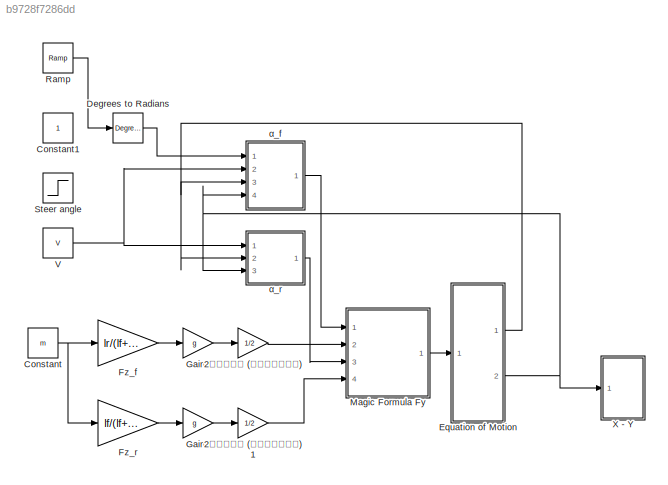
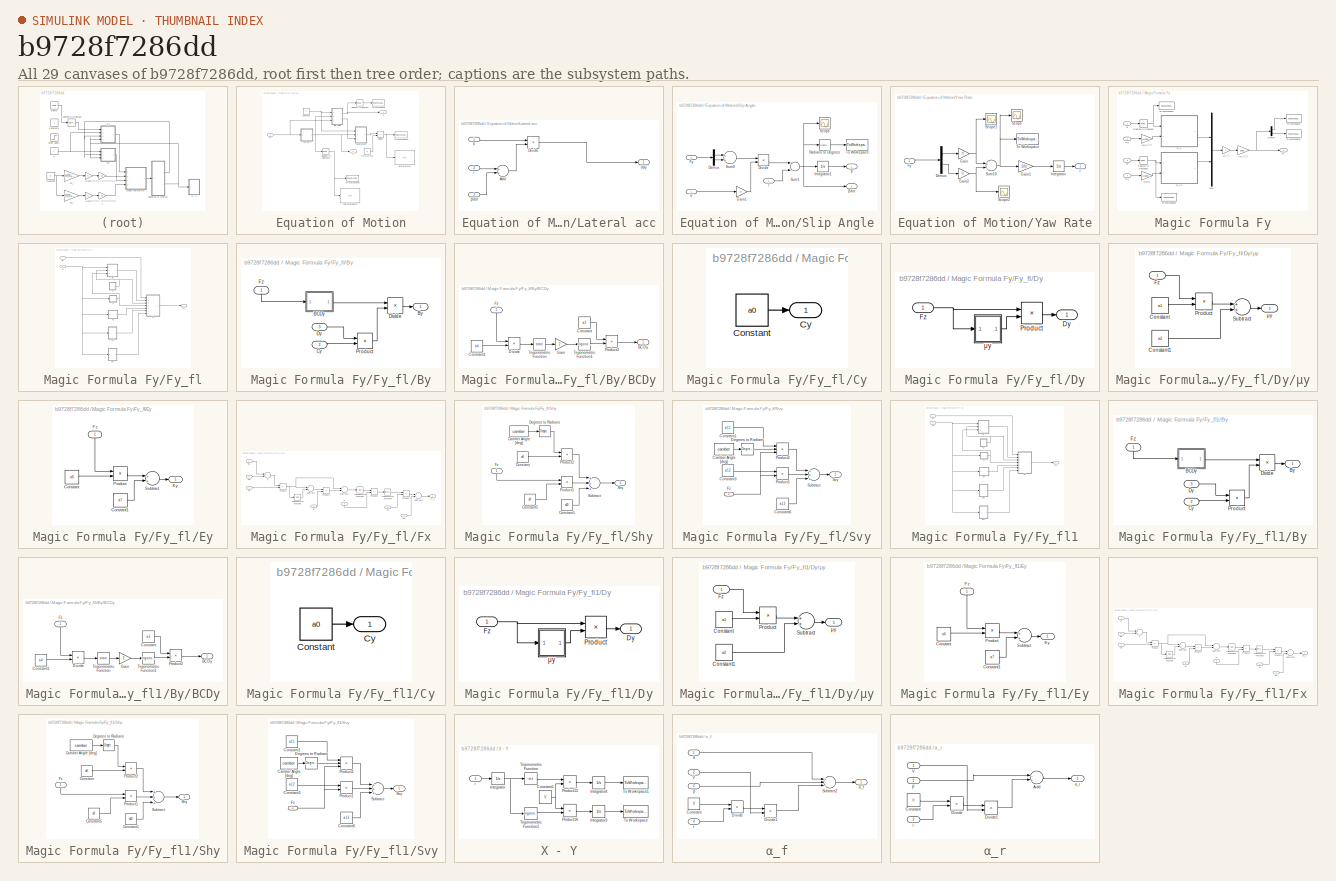
[diagram: thumbnail index - all 29 canvases of the model, root first then tree order]
MODEL slx_b9728f7286dd
KIND model
CONFIG AbsTol = auto
CONFIG EnableMultiTasking = on
CONFIG FixedStep = Step_Time
CONFIG MaxStep = auto
CONFIG MinStep = auto
CONFIG RelTol = 1e-3
CONFIG SampleTimeConstraint = Unconstrained
CONFIG Solver = ode4
CONFIG SolverName = ode4
CONFIG StartTime = 0
CONFIG StopTime = Analysis_Time
BLOCK [Gain] 2輪モデル用 (一輪の接地荷重)
  Gain = 1/2
  OutDataTypeStr = Inherit: Inherit via internal rule
  ParamDataTypeStr = Inherit: Inherit via internal rule
  SaturateOnIntegerOverflow = off
BLOCK [Gain] 2輪モデル用 (一輪の接地荷重)1
  Gain = 1/2
  OutDataTypeStr = Inherit: Inherit via internal rule
  ParamDataTypeStr = Inherit: Inherit via internal rule
  SaturateOnIntegerOverflow = off
BLOCK [Constant] Constant
  Value = m
BLOCK [Constant] Constant1
BLOCK [Reference] Degrees to Radians  REF=simulink_extras/Transformations/Degrees to
Radians
  Ports = [1, 1]
  SourceBlock = simulink_extras/Transformations/Degrees to\nRadians
  SourceProductBaseCode = SL
  SourceProductName = Simulink
  SourceType = DegreesToRadians
BLOCK [SubSystem] Equation of Motion
  Ports = [1, 2]
  RequestExecContextInheritance = off
BLOCK [Constant] Equation of Motion/Constant
  Value = V
BLOCK [Product] Equation of Motion/Divide1
  InputSameDT = off
  Inputs = */
  OutDataTypeStr = Inherit: Inherit via internal rule
  Ports = [2, 1]
  RndMeth = Floor
  SaturateOnIntegerOverflow = off
BLOCK [Inport] Equation of Motion/Fy
  IconDisplay = Port number
BLOCK [SubSystem] Equation of Motion/Lateral acc
  Ports = [3, 1]
  RequestExecContextInheritance = off
BLOCK [Sum] Equation of Motion/Lateral acc/Add
  InputSameDT = off
  OutDataTypeStr = Inherit: Inherit via internal rule
  Ports = [2, 1]
  SaturateOnIntegerOverflow = off
BLOCK [Product] Equation of Motion/Lateral acc/Divide
  InputSameDT = off
  Inputs = **
  OutDataTypeStr = Inherit: Inherit via internal rule
  Ports = [2, 1]
  RndMeth = Floor
  SaturateOnIntegerOverflow = off
BLOCK [Inport] Equation of Motion/Lateral acc/V
  IconDisplay = Port number
BLOCK [Outport] Equation of Motion/Lateral acc/ddy
  IconDisplay = Port number
BLOCK [Inport] Equation of Motion/Lateral acc/r
  IconDisplay = Port number
  Port = 2
BLOCK [Inport] Equation of Motion/Lateral acc/βdot
  IconDisplay = Port number
  Port = 3
BLOCK [Reference] Equation of Motion/Radians to Degrees  REF=simulink_extras/Transformations/Radians
to Degrees
  Ports = [1, 1]
  SourceBlock = simulink_extras/Transformations/Radians\nto Degrees
  SourceProductBaseCode = SL
  SourceProductName = Simulink
  SourceType = RadiansToDegrees
BLOCK [Reference] Equation of Motion/Radians to Degrees1  REF=simulink_extras/Transformations/Radians
to Degrees
  Ports = [1, 1]
  SourceBlock = simulink_extras/Transformations/Radians\nto Degrees
  SourceProductBaseCode = SL
  SourceProductName = Simulink
  SourceType = RadiansToDegrees
BLOCK [SubSystem] Equation of Motion/Slip Angle
  Ports = [3, 2]
  RequestExecContextInheritance = off
BLOCK [Demux] Equation of Motion/Slip Angle/Demux
  DisplayOption = bar
  Outputs = 2
  Ports = [1, 2]
BLOCK [Product] Equation of Motion/Slip Angle/Divide
  InputSameDT = off
  Inputs = */
  OutDataTypeStr = Inherit: Inherit via internal rule
  Ports = [2, 1]
  RndMeth = Floor
  SaturateOnIntegerOverflow = off
BLOCK [Inport] Equation of Motion/Slip Angle/Fy
  IconDisplay = Port number
  Port = 3
BLOCK [Gain] Equation of Motion/Slip Angle/Gain1
  Gain = m
  OutDataTypeStr = Inherit: Inherit via internal rule
  ParamDataTypeStr = Inherit: Inherit via internal rule
  SaturateOnIntegerOverflow = off
BLOCK [Integrator] Equation of Motion/Slip Angle/Integrator1
  Ports = [1, 1]
BLOCK [Reference] Equation of Motion/Slip Angle/Radians to Degrees  REF=simulink_extras/Transformations/Radians
to Degrees
  Ports = [1, 1]
  SourceBlock = simulink_extras/Transformations/Radians\nto Degrees
  SourceProductBaseCode = SL
  SourceProductName = Simulink
  SourceType = RadiansToDegrees
BLOCK [Scope] Equation of Motion/Slip Angle/Scope
  Floating = off
  NumInputPorts = 1
  Ports = [1]
  ScopeSpecificationString = Simulink.scopes.TimeScopeBlockCfg('CurrentConfiguration', extmgr.ConfigurationSet(extmgr.Configuration('Core','General UI',true),extmgr.Configuration('Core','Source UI',true),extmgr.Configuration('Sources','WiredSimulink',true,'DataLoggingVariableName','ScopeData1'),extmgr.Configuration('Visuals','Time Domain',true,'SerializedDisplays',{struct('MinYLimReal','-0.00199','MaxYLimReal','0.01525','YLab...<+1363ch>
BLOCK [Sum] Equation of Motion/Slip Angle/Sum1
  InputSameDT = off
  Inputs = +-
  OutDataTypeStr = Inherit: Inherit via internal rule
  Ports = [2, 1]
  SaturateOnIntegerOverflow = off
BLOCK [Sum] Equation of Motion/Slip Angle/Sum9
  InputSameDT = off
  OutDataTypeStr = Inherit: Inherit via internal rule
  Ports = [2, 1]
  SaturateOnIntegerOverflow = off
BLOCK [ToWorkspace] Equation of Motion/Slip Angle/To Workspace
  FixptAsFi = on
  MaxDataPoints = inf
  Ports = [1]
  SampleTime = -1
  VariableName = dbeta
BLOCK [Inport] Equation of Motion/Slip Angle/V
  IconDisplay = Port number
BLOCK [Inport] Equation of Motion/Slip Angle/r
  IconDisplay = Port number
  Port = 2
BLOCK [Outport] Equation of Motion/Slip Angle/β
  IconDisplay = Port number
BLOCK [Outport] Equation of Motion/Slip Angle/βdot
  IconDisplay = Port number
  Port = 2
BLOCK [ToWorkspace] Equation of Motion/To Workspace
  MaxDataPoints = inf
  Ports = [1]
  SampleTime = -1
  VariableName = beta
BLOCK [ToWorkspace] Equation of Motion/To Workspace1
  MaxDataPoints = inf
  Ports = [1]
  SampleTime = -1
  VariableName = r
BLOCK [ToWorkspace] Equation of Motion/To Workspace2
  MaxDataPoints = inf
  Ports = [1]
  SampleTime = -1
  VariableName = ddy
BLOCK [SubSystem] Equation of Motion/Yaw Rate
  Ports = [1, 1]
  RequestExecContextInheritance = off
BLOCK [Demux] Equation of Motion/Yaw Rate/Demux
  DisplayOption = bar
  Outputs = 2
  Ports = [1, 2]
BLOCK [Inport] Equation of Motion/Yaw Rate/Fy 
  IconDisplay = Port number
BLOCK [Gain] Equation of Motion/Yaw Rate/Gain
  Gain = lf
  OutDataTypeStr = Inherit: Inherit via internal rule
  ParamDataTypeStr = Inherit: Inherit via internal rule
  SaturateOnIntegerOverflow = off
BLOCK [Gain] Equation of Motion/Yaw Rate/Gain1
  Gain = 1/Iz
  OutDataTypeStr = Inherit: Inherit via internal rule
  ParamDataTypeStr = Inherit: Inherit via internal rule
  SaturateOnIntegerOverflow = off
BLOCK [Gain] Equation of Motion/Yaw Rate/Gain2
  Gain = lr
  OutDataTypeStr = Inherit: Inherit via internal rule
  ParamDataTypeStr = Inherit: Inherit via internal rule
  SaturateOnIntegerOverflow = off
BLOCK [Integrator] Equation of Motion/Yaw Rate/Integrator
  Ports = [1, 1]
BLOCK [Scope] Equation of Motion/Yaw Rate/Scope
  Floating = off
  NumInputPorts = 1
  Ports = [1]
  ScopeSpecificationString = Simulink.scopes.TimeScopeBlockCfg('CurrentConfiguration', extmgr.ConfigurationSet(extmgr.Configuration('Core','General UI',true),extmgr.Configuration('Core','Source UI',true),extmgr.Configuration('Sources','WiredSimulink',true),extmgr.Configuration('Visuals','Time Domain',true,'SerializedDisplays',{struct('MinYLimReal','-53.52793','MaxYLimReal','229.32765','YLabelReal','','MinYLimMag','0.00000','M...<+1361ch>
BLOCK [Scope] Equation of Motion/Yaw Rate/Scope1
  Floating = off
  NumInputPorts = 1
  Ports = [1]
  ScopeSpecificationString = Simulink.scopes.TimeScopeBlockCfg('CurrentConfiguration', extmgr.ConfigurationSet(extmgr.Configuration('Core','General UI',true),extmgr.Configuration('Core','Source UI',true),extmgr.Configuration('Sources','WiredSimulink',true,'DataLoggingVariableName','ScopeData1'),extmgr.Configuration('Visuals','Time Domain',true,'SerializedDisplays',{struct('MinYLimReal','-1501.19754','MaxYLimReal','3715.80303'...<+1385ch>
BLOCK [Scope] Equation of Motion/Yaw Rate/Scope2
  Floating = off
  NumInputPorts = 1
  Ports = [1]
  ScopeSpecificationString = Simulink.scopes.TimeScopeBlockCfg('CurrentConfiguration', extmgr.ConfigurationSet(extmgr.Configuration('Core','General UI',true),extmgr.Configuration('Core','Source UI',true),extmgr.Configuration('Sources','WiredSimulink',true,'DataLoggingVariableName','ScopeData2'),extmgr.Configuration('Visuals','Time Domain',true,'SerializedDisplays',{struct('MinYLimReal','-757.52409','MaxYLimReal','4843.35392',...<+1382ch>
BLOCK [Sum] Equation of Motion/Yaw Rate/Sum10
  InputSameDT = off
  Inputs = +-
  OutDataTypeStr = Inherit: Inherit via internal rule
  Ports = [2, 1]
  SaturateOnIntegerOverflow = off
BLOCK [ToWorkspace] Equation of Motion/Yaw Rate/To Workspace
  FixptAsFi = on
  MaxDataPoints = inf
  Ports = [1]
  SampleTime = -1
  VariableName = yaw_mom
BLOCK [Outport] Equation of Motion/Yaw Rate/r
  IconDisplay = Port number
BLOCK [Constant] Equation of Motion/[m//s^2]⇒[G]
  Value = g
BLOCK [Display] Equation of Motion/lateral acc[g]
  Decimation = 1
  Ports = [1]
BLOCK [Outport] Equation of Motion/r
  IconDisplay = Port number
  Port = 2
BLOCK [Display] Equation of Motion/yaw rate[deg//s]
  Decimation = 1
  Ports = [1]
BLOCK [Outport] Equation of Motion/β
  IconDisplay = Port number
BLOCK [Gain] Fz_f
  Gain = lr/(lf+lr)
  OutDataTypeStr = Inherit: Inherit via internal rule
  ParamDataTypeStr = Inherit: Inherit via internal rule
  SaturateOnIntegerOverflow = off
BLOCK [Gain] Fz_r
  Gain = lf/(lf+lr)
  OutDataTypeStr = Inherit: Inherit via internal rule
  ParamDataTypeStr = Inherit: Inherit via internal rule
  SaturateOnIntegerOverflow = off
BLOCK [Gain] Gain2
  Gain = g
  OutDataTypeStr = Inherit: Inherit via internal rule
  ParamDataTypeStr = Inherit: Inherit via internal rule
  SaturateOnIntegerOverflow = off
BLOCK [Gain] Gain3
  Gain = g
  OutDataTypeStr = Inherit: Inherit via internal rule
  ParamDataTypeStr = Inherit: Inherit via internal rule
  SaturateOnIntegerOverflow = off
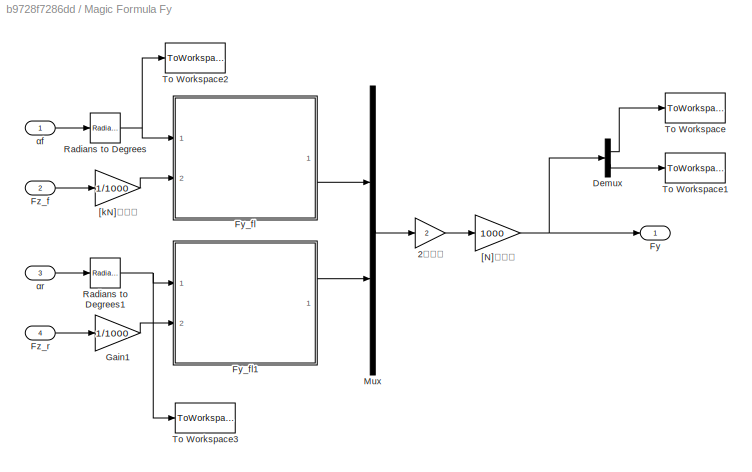
BLOCK [SubSystem] Magic Formula Fy
  Ports = [4, 1]
  RequestExecContextInheritance = off
BLOCK [Gain] Magic Formula Fy/2輪換算
  Gain = 2
  OutDataTypeStr = Inherit: Inherit via internal rule
  ParamDataTypeStr = Inherit: Inherit via internal rule
  SaturateOnIntegerOverflow = off
BLOCK [Demux] Magic Formula Fy/Demux
  DisplayOption = bar
  Outputs = 2
  Ports = [1, 2]
BLOCK [Outport] Magic Formula Fy/Fy
  IconDisplay = Port number
BLOCK [SubSystem] Magic Formula Fy/Fy_fl
  Ports = [2, 1]
  RequestExecContextInheritance = off
BLOCK [SubSystem] Magic Formula Fy/Fy_fl/By
  Ports = [3, 1]
  RequestExecContextInheritance = off
BLOCK [SubSystem] Magic Formula Fy/Fy_fl/By/BCDy
  Ports = [1, 1]
  RequestExecContextInheritance = off
BLOCK [Outport] Magic Formula Fy/Fy_fl/By/BCDy/BCDy
  IconDisplay = Port number
BLOCK [Constant] Magic Formula Fy/Fy_fl/By/BCDy/Constant
  Value = a3
BLOCK [Constant] Magic Formula Fy/Fy_fl/By/BCDy/Constant1
  Value = a4
BLOCK [Product] Magic Formula Fy/Fy_fl/By/BCDy/Divide
  InputSameDT = off
  Inputs = */
  OutDataTypeStr = Inherit: Inherit via internal rule
  Ports = [2, 1]
  RndMeth = Floor
  SaturateOnIntegerOverflow = off
BLOCK [Inport] Magic Formula Fy/Fy_fl/By/BCDy/Fz
  IconDisplay = Port number
BLOCK [Gain] Magic Formula Fy/Fy_fl/By/BCDy/Gain
  Gain = 2
  OutDataTypeStr = Inherit: Inherit via internal rule
  ParamDataTypeStr = Inherit: Inherit via internal rule
  SaturateOnIntegerOverflow = off
BLOCK [Product] Magic Formula Fy/Fy_fl/By/BCDy/Product2
  InputSameDT = off
  OutDataTypeStr = Inherit: Inherit via internal rule
  Ports = [2, 1]
  RndMeth = Floor
  SaturateOnIntegerOverflow = off
BLOCK [Trigonometry] Magic Formula Fy/Fy_fl/By/BCDy/Trigonometric Function
  Operator = atan
  Ports = [1, 1]
BLOCK [Trigonometry] Magic Formula Fy/Fy_fl/By/BCDy/Trigonometric Function1
  Ports = [1, 1]
BLOCK [Outport] Magic Formula Fy/Fy_fl/By/By
  IconDisplay = Port number
BLOCK [Inport] Magic Formula Fy/Fy_fl/By/Cy
  IconDisplay = Port number
  Port = 2
BLOCK [Product] Magic Formula Fy/Fy_fl/By/Divide
  InputSameDT = off
  Inputs = */
  OutDataTypeStr = Inherit: Inherit via internal rule
  Ports = [2, 1]
  RndMeth = Floor
  SaturateOnIntegerOverflow = off
BLOCK [Inport] Magic Formula Fy/Fy_fl/By/Dy
  IconDisplay = Port number
  Port = 3
BLOCK [Inport] Magic Formula Fy/Fy_fl/By/Fz
  IconDisplay = Port number
BLOCK [Product] Magic Formula Fy/Fy_fl/By/Product
  InputSameDT = off
  OutDataTypeStr = Inherit: Inherit via internal rule
  Ports = [2, 1]
  RndMeth = Floor
  SaturateOnIntegerOverflow = off
BLOCK [SubSystem] Magic Formula Fy/Fy_fl/Cy
  Ports = [0, 1]
  RequestExecContextInheritance = off
BLOCK [Constant] Magic Formula Fy/Fy_fl/Cy/Constant
  Value = a0
BLOCK [Outport] Magic Formula Fy/Fy_fl/Cy/Cy
  IconDisplay = Port number
BLOCK [SubSystem] Magic Formula Fy/Fy_fl/Dy
  Ports = [1, 1]
  RequestExecContextInheritance = off
BLOCK [Outport] Magic Formula Fy/Fy_fl/Dy/Dy
  IconDisplay = Port number
BLOCK [Inport] Magic Formula Fy/Fy_fl/Dy/Fz
  IconDisplay = Port number
BLOCK [Product] Magic Formula Fy/Fy_fl/Dy/Product
  InputSameDT = off
  OutDataTypeStr = Inherit: Inherit via internal rule
  Ports = [2, 1]
  RndMeth = Floor
  SaturateOnIntegerOverflow = off
BLOCK [SubSystem] Magic Formula Fy/Fy_fl/Dy/μy
  Ports = [1, 1]
  RequestExecContextInheritance = off
BLOCK [Constant] Magic Formula Fy/Fy_fl/Dy/μy/Constant
  Value = a1
BLOCK [Constant] Magic Formula Fy/Fy_fl/Dy/μy/Constant1
  Value = a2
BLOCK [Inport] Magic Formula Fy/Fy_fl/Dy/μy/Fz
  IconDisplay = Port number
BLOCK [Product] Magic Formula Fy/Fy_fl/Dy/μy/Product
  InputSameDT = off
  OutDataTypeStr = Inherit: Inherit via internal rule
  Ports = [2, 1]
  RndMeth = Floor
  SaturateOnIntegerOverflow = off
BLOCK [Sum] Magic Formula Fy/Fy_fl/Dy/μy/Subtract
  InputSameDT = off
  OutDataTypeStr = Inherit: Inherit via internal rule
  Ports = [2, 1]
  SaturateOnIntegerOverflow = off
BLOCK [Outport] Magic Formula Fy/Fy_fl/Dy/μy/μy
  IconDisplay = Port number
BLOCK [SubSystem] Magic Formula Fy/Fy_fl/Ey
  Ports = [1, 1]
  RequestExecContextInheritance = off
BLOCK [Constant] Magic Formula Fy/Fy_fl/Ey/Constant
  Value = a6
BLOCK [Constant] Magic Formula Fy/Fy_fl/Ey/Constant1
  Value = a7
BLOCK [Outport] Magic Formula Fy/Fy_fl/Ey/Ey
  IconDisplay = Port number
BLOCK [Inport] Magic Formula Fy/Fy_fl/Ey/Fz
  IconDisplay = Port number
BLOCK [Product] Magic Formula Fy/Fy_fl/Ey/Product
  InputSameDT = off
  OutDataTypeStr = Inherit: Inherit via internal rule
  Ports = [2, 1]
  RndMeth = Floor
  SaturateOnIntegerOverflow = off
BLOCK [Sum] Magic Formula Fy/Fy_fl/Ey/Subtract
  InputSameDT = off
  OutDataTypeStr = Inherit: Inherit via internal rule
  Ports = [2, 1]
  SaturateOnIntegerOverflow = off
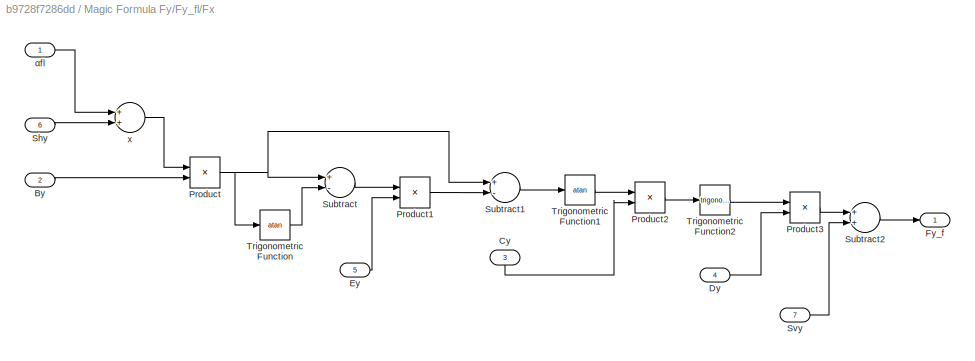
BLOCK [SubSystem] Magic Formula Fy/Fy_fl/Fx
  Ports = [7, 1]
  RequestExecContextInheritance = off
BLOCK [Inport] Magic Formula Fy/Fy_fl/Fx/By
  IconDisplay = Port number
  Port = 2
BLOCK [Inport] Magic Formula Fy/Fy_fl/Fx/Cy
  IconDisplay = Port number
  Port = 3
BLOCK [Inport] Magic Formula Fy/Fy_fl/Fx/Dy
  IconDisplay = Port number
  Port = 4
BLOCK [Inport] Magic Formula Fy/Fy_fl/Fx/Ey
  IconDisplay = Port number
  Port = 5
BLOCK [Outport] Magic Formula Fy/Fy_fl/Fx/Fy_f
  IconDisplay = Port number
BLOCK [Product] Magic Formula Fy/Fy_fl/Fx/Product
  InputSameDT = off
  OutDataTypeStr = Inherit: Inherit via internal rule
  Ports = [2, 1]
  RndMeth = Floor
  SaturateOnIntegerOverflow = off
BLOCK [Product] Magic Formula Fy/Fy_fl/Fx/Product1
  InputSameDT = off
  OutDataTypeStr = Inherit: Inherit via internal rule
  Ports = [2, 1]
  RndMeth = Floor
  SaturateOnIntegerOverflow = off
BLOCK [Product] Magic Formula Fy/Fy_fl/Fx/Product2
  InputSameDT = off
  OutDataTypeStr = Inherit: Inherit via internal rule
  Ports = [2, 1]
  RndMeth = Floor
  SaturateOnIntegerOverflow = off
BLOCK [Product] Magic Formula Fy/Fy_fl/Fx/Product3
  InputSameDT = off
  OutDataTypeStr = Inherit: Inherit via internal rule
  Ports = [2, 1]
  RndMeth = Floor
  SaturateOnIntegerOverflow = off
BLOCK [Inport] Magic Formula Fy/Fy_fl/Fx/Shy
  IconDisplay = Port number
  Port = 6
BLOCK [Sum] Magic Formula Fy/Fy_fl/Fx/Subtract
  InputSameDT = off
  Inputs = +-
  OutDataTypeStr = Inherit: Inherit via internal rule
  Ports = [2, 1]
  SaturateOnIntegerOverflow = off
BLOCK [Sum] Magic Formula Fy/Fy_fl/Fx/Subtract1
  InputSameDT = off
  Inputs = +-
  OutDataTypeStr = Inherit: Inherit via internal rule
  Ports = [2, 1]
  SaturateOnIntegerOverflow = off
BLOCK [Sum] Magic Formula Fy/Fy_fl/Fx/Subtract2
  InputSameDT = off
  OutDataTypeStr = Inherit: Inherit via internal rule
  Ports = [2, 1]
  SaturateOnIntegerOverflow = off
BLOCK [Inport] Magic Formula Fy/Fy_fl/Fx/Svy
  IconDisplay = Port number
  Port = 7
BLOCK [Trigonometry] Magic Formula Fy/Fy_fl/Fx/Trigonometric Function
  Operator = atan
  Ports = [1, 1]
BLOCK [Trigonometry] Magic Formula Fy/Fy_fl/Fx/Trigonometric Function1
  Operator = atan
  Ports = [1, 1]
BLOCK [Trigonometry] Magic Formula Fy/Fy_fl/Fx/Trigonometric Function2
  Ports = [1, 1]
BLOCK [Sum] Magic Formula Fy/Fy_fl/Fx/x
  InputSameDT = off
  OutDataTypeStr = Inherit: Inherit via internal rule
  Ports = [2, 1]
  SaturateOnIntegerOverflow = off
BLOCK [Inport] Magic Formula Fy/Fy_fl/Fx/αfl
  IconDisplay = Port number
BLOCK [Outport] Magic Formula Fy/Fy_fl/Fy_f
  IconDisplay = Port number
BLOCK [Inport] Magic Formula Fy/Fy_fl/Fz
  IconDisplay = Port number
  Port = 2
BLOCK [SubSystem] Magic Formula Fy/Fy_fl/Shy
  Ports = [1, 1]
  RequestExecContextInheritance = off
BLOCK [Constant] Magic Formula Fy/Fy_fl/Shy/Camber Angle [deg]
  Value = camber
BLOCK [Constant] Magic Formula Fy/Fy_fl/Shy/Constant
  Value = a8
BLOCK [Constant] Magic Formula Fy/Fy_fl/Shy/Constant1
  Value = a10
BLOCK [Constant] Magic Formula Fy/Fy_fl/Shy/Constant5
  Value = a9
BLOCK [Reference] Magic Formula Fy/Fy_fl/Shy/Degrees to Radians  REF=simulink_extras/Transformations/Degrees to
Radians
  Ports = [1, 1]
  SourceBlock = simulink_extras/Transformations/Degrees to\nRadians
  SourceProductBaseCode = SL
  SourceProductName = Simulink
  SourceType = DegreesToRadians
BLOCK [Inport] Magic Formula Fy/Fy_fl/Shy/Fz
  IconDisplay = Port number
BLOCK [Product] Magic Formula Fy/Fy_fl/Shy/Product1
  InputSameDT = off
  OutDataTypeStr = Inherit: Inherit via internal rule
  Ports = [2, 1]
  RndMeth = Floor
  SaturateOnIntegerOverflow = off
BLOCK [Product] Magic Formula Fy/Fy_fl/Shy/Product2
  InputSameDT = off
  OutDataTypeStr = Inherit: Inherit via internal rule
  Ports = [2, 1]
  RndMeth = Floor
  SaturateOnIntegerOverflow = off
BLOCK [Outport] Magic Formula Fy/Fy_fl/Shy/Shy
  IconDisplay = Port number
BLOCK [Sum] Magic Formula Fy/Fy_fl/Shy/Subtract
  InputSameDT = off
  Inputs = +++
  OutDataTypeStr = Inherit: Inherit via internal rule
  Ports = [3, 1]
  SaturateOnIntegerOverflow = off
BLOCK [SubSystem] Magic Formula Fy/Fy_fl/Svy
  Ports = [1, 1]
  RequestExecContextInheritance = off
BLOCK [Constant] Magic Formula Fy/Fy_fl/Svy/Camber Angle [deg]
  Value = camber
BLOCK [Constant] Magic Formula Fy/Fy_fl/Svy/Constant1
  Value = a11
BLOCK [Constant] Magic Formula Fy/Fy_fl/Svy/Constant3
  Value = a12
BLOCK [Constant] Magic Formula Fy/Fy_fl/Svy/Constant6
  Value = a13
BLOCK [Reference] Magic Formula Fy/Fy_fl/Svy/Degrees to Radians  REF=simulink_extras/Transformations/Degrees to
Radians
  Ports = [1, 1]
  SourceBlock = simulink_extras/Transformations/Degrees to\nRadians
  SourceProductBaseCode = SL
  SourceProductName = Simulink
  SourceType = DegreesToRadians
BLOCK [Inport] Magic Formula Fy/Fy_fl/Svy/Fz
  IconDisplay = Port number
BLOCK [Product] Magic Formula Fy/Fy_fl/Svy/Product1
  InputSameDT = off
  OutDataTypeStr = Inherit: Inherit via internal rule
  Ports = [2, 1]
  RndMeth = Floor
  SaturateOnIntegerOverflow = off
BLOCK [Product] Magic Formula Fy/Fy_fl/Svy/Product2
  InputSameDT = off
  Inputs = 3
  OutDataTypeStr = Inherit: Inherit via internal rule
  Ports = [3, 1]
  RndMeth = Floor
  SaturateOnIntegerOverflow = off
BLOCK [Sum] Magic Formula Fy/Fy_fl/Svy/Subtract
  InputSameDT = off
  Inputs = +++
  OutDataTypeStr = Inherit: Inherit via internal rule
  Ports = [3, 1]
  SaturateOnIntegerOverflow = off
BLOCK [Outport] Magic Formula Fy/Fy_fl/Svy/Svy
  IconDisplay = Port number
BLOCK [Inport] Magic Formula Fy/Fy_fl/αfl
  IconDisplay = Port number
BLOCK [SubSystem] Magic Formula Fy/Fy_fl1
  Ports = [2, 1]
  RequestExecContextInheritance = off
BLOCK [SubSystem] Magic Formula Fy/Fy_fl1/By
  Ports = [3, 1]
  RequestExecContextInheritance = off
BLOCK [SubSystem] Magic Formula Fy/Fy_fl1/By/BCDy
  Ports = [1, 1]
  RequestExecContextInheritance = off
BLOCK [Outport] Magic Formula Fy/Fy_fl1/By/BCDy/BCDy
  IconDisplay = Port number
BLOCK [Constant] Magic Formula Fy/Fy_fl1/By/BCDy/Constant
  Value = a3
BLOCK [Constant] Magic Formula Fy/Fy_fl1/By/BCDy/Constant1
  Value = a4
BLOCK [Product] Magic Formula Fy/Fy_fl1/By/BCDy/Divide
  InputSameDT = off
  Inputs = */
  OutDataTypeStr = Inherit: Inherit via internal rule
  Ports = [2, 1]
  RndMeth = Floor
  SaturateOnIntegerOverflow = off
BLOCK [Inport] Magic Formula Fy/Fy_fl1/By/BCDy/Fz
  IconDisplay = Port number
BLOCK [Gain] Magic Formula Fy/Fy_fl1/By/BCDy/Gain
  Gain = 2
  OutDataTypeStr = Inherit: Inherit via internal rule
  ParamDataTypeStr = Inherit: Inherit via internal rule
  SaturateOnIntegerOverflow = off
BLOCK [Product] Magic Formula Fy/Fy_fl1/By/BCDy/Product2
  InputSameDT = off
  OutDataTypeStr = Inherit: Inherit via internal rule
  Ports = [2, 1]
  RndMeth = Floor
  SaturateOnIntegerOverflow = off
BLOCK [Trigonometry] Magic Formula Fy/Fy_fl1/By/BCDy/Trigonometric Function
  Operator = atan
  Ports = [1, 1]
BLOCK [Trigonometry] Magic Formula Fy/Fy_fl1/By/BCDy/Trigonometric Function1
  Ports = [1, 1]
BLOCK [Outport] Magic Formula Fy/Fy_fl1/By/By
  IconDisplay = Port number
BLOCK [Inport] Magic Formula Fy/Fy_fl1/By/Cy
  IconDisplay = Port number
  Port = 2
BLOCK [Product] Magic Formula Fy/Fy_fl1/By/Divide
  InputSameDT = off
  Inputs = */
  OutDataTypeStr = Inherit: Inherit via internal rule
  Ports = [2, 1]
  RndMeth = Floor
  SaturateOnIntegerOverflow = off
BLOCK [Inport] Magic Formula Fy/Fy_fl1/By/Dy
  IconDisplay = Port number
  Port = 3
BLOCK [Inport] Magic Formula Fy/Fy_fl1/By/Fz
  IconDisplay = Port number
BLOCK [Product] Magic Formula Fy/Fy_fl1/By/Product
  InputSameDT = off
  OutDataTypeStr = Inherit: Inherit via internal rule
  Ports = [2, 1]
  RndMeth = Floor
  SaturateOnIntegerOverflow = off
BLOCK [SubSystem] Magic Formula Fy/Fy_fl1/Cy
  Ports = [0, 1]
  RequestExecContextInheritance = off
BLOCK [Constant] Magic Formula Fy/Fy_fl1/Cy/Constant
  Value = a0
BLOCK [Outport] Magic Formula Fy/Fy_fl1/Cy/Cy
  IconDisplay = Port number
BLOCK [SubSystem] Magic Formula Fy/Fy_fl1/Dy
  Ports = [1, 1]
  RequestExecContextInheritance = off
BLOCK [Outport] Magic Formula Fy/Fy_fl1/Dy/Dy
  IconDisplay = Port number
BLOCK [Inport] Magic Formula Fy/Fy_fl1/Dy/Fz
  IconDisplay = Port number
BLOCK [Product] Magic Formula Fy/Fy_fl1/Dy/Product
  InputSameDT = off
  OutDataTypeStr = Inherit: Inherit via internal rule
  Ports = [2, 1]
  RndMeth = Floor
  SaturateOnIntegerOverflow = off
BLOCK [SubSystem] Magic Formula Fy/Fy_fl1/Dy/μy
  Ports = [1, 1]
  RequestExecContextInheritance = off
BLOCK [Constant] Magic Formula Fy/Fy_fl1/Dy/μy/Constant
  Value = a1
BLOCK [Constant] Magic Formula Fy/Fy_fl1/Dy/μy/Constant1
  Value = a2
BLOCK [Inport] Magic Formula Fy/Fy_fl1/Dy/μy/Fz
  IconDisplay = Port number
BLOCK [Product] Magic Formula Fy/Fy_fl1/Dy/μy/Product
  InputSameDT = off
  OutDataTypeStr = Inherit: Inherit via internal rule
  Ports = [2, 1]
  RndMeth = Floor
  SaturateOnIntegerOverflow = off
BLOCK [Sum] Magic Formula Fy/Fy_fl1/Dy/μy/Subtract
  InputSameDT = off
  OutDataTypeStr = Inherit: Inherit via internal rule
  Ports = [2, 1]
  SaturateOnIntegerOverflow = off
BLOCK [Outport] Magic Formula Fy/Fy_fl1/Dy/μy/μy
  IconDisplay = Port number
BLOCK [SubSystem] Magic Formula Fy/Fy_fl1/Ey
  Ports = [1, 1]
  RequestExecContextInheritance = off
BLOCK [Constant] Magic Formula Fy/Fy_fl1/Ey/Constant
  Value = a6
BLOCK [Constant] Magic Formula Fy/Fy_fl1/Ey/Constant1
  Value = a7
BLOCK [Outport] Magic Formula Fy/Fy_fl1/Ey/Ey
  IconDisplay = Port number
BLOCK [Inport] Magic Formula Fy/Fy_fl1/Ey/Fz
  IconDisplay = Port number
BLOCK [Product] Magic Formula Fy/Fy_fl1/Ey/Product
  InputSameDT = off
  OutDataTypeStr = Inherit: Inherit via internal rule
  Ports = [2, 1]
  RndMeth = Floor
  SaturateOnIntegerOverflow = off
BLOCK [Sum] Magic Formula Fy/Fy_fl1/Ey/Subtract
  InputSameDT = off
  OutDataTypeStr = Inherit: Inherit via internal rule
  Ports = [2, 1]
  SaturateOnIntegerOverflow = off
BLOCK [SubSystem] Magic Formula Fy/Fy_fl1/Fx
  Ports = [7, 1]
  RequestExecContextInheritance = off
BLOCK [Inport] Magic Formula Fy/Fy_fl1/Fx/By
  IconDisplay = Port number
  Port = 2
BLOCK [Inport] Magic Formula Fy/Fy_fl1/Fx/Cy
  IconDisplay = Port number
  Port = 3
BLOCK [Inport] Magic Formula Fy/Fy_fl1/Fx/Dy
  IconDisplay = Port number
  Port = 4
BLOCK [Inport] Magic Formula Fy/Fy_fl1/Fx/Ey
  IconDisplay = Port number
  Port = 5
BLOCK [Outport] Magic Formula Fy/Fy_fl1/Fx/Fy_r
  IconDisplay = Port number
BLOCK [Product] Magic Formula Fy/Fy_fl1/Fx/Product
  InputSameDT = off
  OutDataTypeStr = Inherit: Inherit via internal rule
  Ports = [2, 1]
  RndMeth = Floor
  SaturateOnIntegerOverflow = off
BLOCK [Product] Magic Formula Fy/Fy_fl1/Fx/Product1
  InputSameDT = off
  OutDataTypeStr = Inherit: Inherit via internal rule
  Ports = [2, 1]
  RndMeth = Floor
  SaturateOnIntegerOverflow = off
BLOCK [Product] Magic Formula Fy/Fy_fl1/Fx/Product2
  InputSameDT = off
  OutDataTypeStr = Inherit: Inherit via internal rule
  Ports = [2, 1]
  RndMeth = Floor
  SaturateOnIntegerOverflow = off
BLOCK [Product] Magic Formula Fy/Fy_fl1/Fx/Product3
  InputSameDT = off
  OutDataTypeStr = Inherit: Inherit via internal rule
  Ports = [2, 1]
  RndMeth = Floor
  SaturateOnIntegerOverflow = off
BLOCK [Inport] Magic Formula Fy/Fy_fl1/Fx/Shy
  IconDisplay = Port number
  Port = 6
BLOCK [Sum] Magic Formula Fy/Fy_fl1/Fx/Subtract
  InputSameDT = off
  Inputs = +-
  OutDataTypeStr = Inherit: Inherit via internal rule
  Ports = [2, 1]
  SaturateOnIntegerOverflow = off
BLOCK [Sum] Magic Formula Fy/Fy_fl1/Fx/Subtract1
  InputSameDT = off
  Inputs = +-
  OutDataTypeStr = Inherit: Inherit via internal rule
  Ports = [2, 1]
  SaturateOnIntegerOverflow = off
BLOCK [Sum] Magic Formula Fy/Fy_fl1/Fx/Subtract2
  InputSameDT = off
  OutDataTypeStr = Inherit: Inherit via internal rule
  Ports = [2, 1]
  SaturateOnIntegerOverflow = off
BLOCK [Inport] Magic Formula Fy/Fy_fl1/Fx/Svy
  IconDisplay = Port number
  Port = 7
BLOCK [Trigonometry] Magic Formula Fy/Fy_fl1/Fx/Trigonometric Function
  Operator = atan
  Ports = [1, 1]
BLOCK [Trigonometry] Magic Formula Fy/Fy_fl1/Fx/Trigonometric Function1
  Operator = atan
  Ports = [1, 1]
BLOCK [Trigonometry] Magic Formula Fy/Fy_fl1/Fx/Trigonometric Function2
  Ports = [1, 1]
BLOCK [Sum] Magic Formula Fy/Fy_fl1/Fx/x
  InputSameDT = off
  OutDataTypeStr = Inherit: Inherit via internal rule
  Ports = [2, 1]
  SaturateOnIntegerOverflow = off
BLOCK [Inport] Magic Formula Fy/Fy_fl1/Fx/αr
  IconDisplay = Port number
BLOCK [Outport] Magic Formula Fy/Fy_fl1/Fy_r
  IconDisplay = Port number
BLOCK [Inport] Magic Formula Fy/Fy_fl1/Fz
  IconDisplay = Port number
  Port = 2
BLOCK [SubSystem] Magic Formula Fy/Fy_fl1/Shy
  Ports = [1, 1]
  RequestExecContextInheritance = off
BLOCK [Constant] Magic Formula Fy/Fy_fl1/Shy/Camber Angle [deg]
  Value = camber
BLOCK [Constant] Magic Formula Fy/Fy_fl1/Shy/Constant
  Value = a8
BLOCK [Constant] Magic Formula Fy/Fy_fl1/Shy/Constant1
  Value = a10
BLOCK [Constant] Magic Formula Fy/Fy_fl1/Shy/Constant5
  Value = a9
BLOCK [Reference] Magic Formula Fy/Fy_fl1/Shy/Degrees to Radians  REF=simulink_extras/Transformations/Degrees to
Radians
  Ports = [1, 1]
  SourceBlock = simulink_extras/Transformations/Degrees to\nRadians
  SourceProductBaseCode = SL
  SourceProductName = Simulink
  SourceType = DegreesToRadians
BLOCK [Inport] Magic Formula Fy/Fy_fl1/Shy/Fz
  IconDisplay = Port number
BLOCK [Product] Magic Formula Fy/Fy_fl1/Shy/Product1
  InputSameDT = off
  OutDataTypeStr = Inherit: Inherit via internal rule
  Ports = [2, 1]
  RndMeth = Floor
  SaturateOnIntegerOverflow = off
BLOCK [Product] Magic Formula Fy/Fy_fl1/Shy/Product2
  InputSameDT = off
  OutDataTypeStr = Inherit: Inherit via internal rule
  Ports = [2, 1]
  RndMeth = Floor
  SaturateOnIntegerOverflow = off
BLOCK [Outport] Magic Formula Fy/Fy_fl1/Shy/Shy
  IconDisplay = Port number
BLOCK [Sum] Magic Formula Fy/Fy_fl1/Shy/Subtract
  InputSameDT = off
  Inputs = +++
  OutDataTypeStr = Inherit: Inherit via internal rule
  Ports = [3, 1]
  SaturateOnIntegerOverflow = off
BLOCK [SubSystem] Magic Formula Fy/Fy_fl1/Svy
  Ports = [1, 1]
  RequestExecContextInheritance = off
BLOCK [Constant] Magic Formula Fy/Fy_fl1/Svy/Camber Angle [deg]
  Value = camber
BLOCK [Constant] Magic Formula Fy/Fy_fl1/Svy/Constant1
  Value = a11
BLOCK [Constant] Magic Formula Fy/Fy_fl1/Svy/Constant3
  Value = a12
BLOCK [Constant] Magic Formula Fy/Fy_fl1/Svy/Constant6
  Value = a13
BLOCK [Reference] Magic Formula Fy/Fy_fl1/Svy/Degrees to Radians  REF=simulink_extras/Transformations/Degrees to
Radians
  Ports = [1, 1]
  SourceBlock = simulink_extras/Transformations/Degrees to\nRadians
  SourceProductBaseCode = SL
  SourceProductName = Simulink
  SourceType = DegreesToRadians
BLOCK [Inport] Magic Formula Fy/Fy_fl1/Svy/Fz
  IconDisplay = Port number
BLOCK [Product] Magic Formula Fy/Fy_fl1/Svy/Product1
  InputSameDT = off
  OutDataTypeStr = Inherit: Inherit via internal rule
  Ports = [2, 1]
  RndMeth = Floor
  SaturateOnIntegerOverflow = off
BLOCK [Product] Magic Formula Fy/Fy_fl1/Svy/Product2
  InputSameDT = off
  Inputs = 3
  OutDataTypeStr = Inherit: Inherit via internal rule
  Ports = [3, 1]
  RndMeth = Floor
  SaturateOnIntegerOverflow = off
BLOCK [Sum] Magic Formula Fy/Fy_fl1/Svy/Subtract
  InputSameDT = off
  Inputs = +++
  OutDataTypeStr = Inherit: Inherit via internal rule
  Ports = [3, 1]
  SaturateOnIntegerOverflow = off
BLOCK [Outport] Magic Formula Fy/Fy_fl1/Svy/Svy
  IconDisplay = Port number
BLOCK [Inport] Magic Formula Fy/Fy_fl1/αr
  IconDisplay = Port number
BLOCK [Inport] Magic Formula Fy/Fz_f
  IconDisplay = Port number
  Port = 2
BLOCK [Inport] Magic Formula Fy/Fz_r
  IconDisplay = Port number
  Port = 4
BLOCK [Gain] Magic Formula Fy/Gain1
  Gain = 1/1000
  OutDataTypeStr = Inherit: Inherit via internal rule
  ParamDataTypeStr = Inherit: Inherit via internal rule
  SaturateOnIntegerOverflow = off
BLOCK [Mux] Magic Formula Fy/Mux
  DisplayOption = bar
  Inputs = 2
  Ports = [2, 1]
BLOCK [Reference] Magic Formula Fy/Radians to Degrees  REF=simulink_extras/Transformations/Radians
to Degrees
  Ports = [1, 1]
  SourceBlock = simulink_extras/Transformations/Radians\nto Degrees
  SourceProductBaseCode = SL
  SourceProductName = Simulink
  SourceType = RadiansToDegrees
BLOCK [Reference] Magic Formula Fy/Radians to Degrees1  REF=simulink_extras/Transformations/Radians
to Degrees
  Ports = [1, 1]
  SourceBlock = simulink_extras/Transformations/Radians\nto Degrees
  SourceProductBaseCode = SL
  SourceProductName = Simulink
  SourceType = RadiansToDegrees
BLOCK [ToWorkspace] Magic Formula Fy/To Workspace
  FixptAsFi = on
  MaxDataPoints = inf
  Ports = [1]
  SampleTime = -1
  VariableName = Fy_f
BLOCK [ToWorkspace] Magic Formula Fy/To Workspace1
  FixptAsFi = on
  MaxDataPoints = inf
  Ports = [1]
  SampleTime = -1
  VariableName = Fy_r
BLOCK [ToWorkspace] Magic Formula Fy/To Workspace2
  FixptAsFi = on
  MaxDataPoints = inf
  Ports = [1]
  SampleTime = -1
  VariableName = alpha_f
BLOCK [ToWorkspace] Magic Formula Fy/To Workspace3
  FixptAsFi = on
  MaxDataPoints = inf
  Ports = [1]
  SampleTime = -1
  VariableName = alpha_r
BLOCK [Gain] Magic Formula Fy/[N]に換算
  Gain = 1000
  OutDataTypeStr = Inherit: Inherit via internal rule
  ParamDataTypeStr = Inherit: Inherit via internal rule
  SaturateOnIntegerOverflow = off
BLOCK [Gain] Magic Formula Fy/[kN]に換算
  Gain = 1/1000
  OutDataTypeStr = Inherit: Inherit via internal rule
  ParamDataTypeStr = Inherit: Inherit via internal rule
  SaturateOnIntegerOverflow = off
BLOCK [Inport] Magic Formula Fy/αf
  IconDisplay = Port number
BLOCK [Inport] Magic Formula Fy/αr
  IconDisplay = Port number
  Port = 3
BLOCK [Reference] Ramp  REF=simulink/Sources/Ramp
  Ports = [0, 1]
  SourceBlock = simulink/Sources/Ramp
  SourceProductBaseCode = SL
  SourceProductName = Simulink
  SourceType = Ramp
BLOCK [Step] Steer angle
  SampleTime = 0
BLOCK [Constant] V
  Value = V
BLOCK [SubSystem] X - Y
  Ports = [1]
  RequestExecContextInheritance = off
BLOCK [Constant] X - Y/Constant1
  Value = V
BLOCK [Integrator] X - Y/Integrator
  Ports = [1, 1]
BLOCK [Integrator] X - Y/Integrator3
  Ports = [1, 1]
BLOCK [Integrator] X - Y/Integrator4
  Ports = [1, 1]
BLOCK [Product] X - Y/Product15
  InputSameDT = off
  OutDataTypeStr = Inherit: Inherit via internal rule
  Ports = [2, 1]
  SaturateOnIntegerOverflow = off
BLOCK [Product] X - Y/Product16
  InputSameDT = off
  OutDataTypeStr = Inherit: Inherit via internal rule
  Ports = [2, 1]
  SaturateOnIntegerOverflow = off
BLOCK [ToWorkspace] X - Y/To Workspace
  MaxDataPoints = inf
  Ports = [1]
  SampleTime = -1
  VariableName = Y
BLOCK [ToWorkspace] X - Y/To Workspace1
  MaxDataPoints = inf
  Ports = [1]
  SampleTime = -1
  VariableName = X
BLOCK [Trigonometry] X - Y/Trigonometric Function
  Operator = cos
  Ports = [1, 1]
BLOCK [Trigonometry] X - Y/Trigonometric Function1
  Ports = [1, 1]
BLOCK [Inport] X - Y/r
  IconDisplay = Port number
BLOCK [SubSystem] α_f
  Ports = [4, 1]
  RequestExecContextInheritance = off
BLOCK [Constant] α_f/Constant
  Value = lf
BLOCK [Product] α_f/Divide
  InputSameDT = off
  Inputs = **
  OutDataTypeStr = Inherit: Inherit via internal rule
  Ports = [2, 1]
  RndMeth = Floor
  SaturateOnIntegerOverflow = off
BLOCK [Product] α_f/Divide1
  InputSameDT = off
  Inputs = */
  OutDataTypeStr = Inherit: Inherit via internal rule
  Ports = [2, 1]
  RndMeth = Floor
  SaturateOnIntegerOverflow = off
BLOCK [Sum] α_f/Subtract2
  InputSameDT = off
  Inputs = +--
  OutDataTypeStr = Inherit: Inherit via internal rule
  Ports = [3, 1]
  SaturateOnIntegerOverflow = off
BLOCK [Inport] α_f/V
  IconDisplay = Port number
  Port = 2
BLOCK [Inport] α_f/r
  IconDisplay = Port number
  Port = 4
BLOCK [Outport] α_f/α_f
  IconDisplay = Port number
BLOCK [Inport] α_f/β
  IconDisplay = Port number
  Port = 3
BLOCK [Inport] α_f/δ
  IconDisplay = Port number
BLOCK [SubSystem] α_r
  Ports = [3, 1]
  RequestExecContextInheritance = off
BLOCK [Sum] α_r/Add
  InputSameDT = off
  Inputs = -+
  OutDataTypeStr = Inherit: Inherit via internal rule
  Ports = [2, 1]
  SaturateOnIntegerOverflow = off
BLOCK [Constant] α_r/Constant
  Value = lr
BLOCK [Product] α_r/Divide
  InputSameDT = off
  Inputs = **
  OutDataTypeStr = Inherit: Inherit via internal rule
  Ports = [2, 1]
  RndMeth = Floor
  SaturateOnIntegerOverflow = off
BLOCK [Product] α_r/Divide1
  InputSameDT = off
  Inputs = */
  OutDataTypeStr = Inherit: Inherit via internal rule
  Ports = [2, 1]
  RndMeth = Floor
  SaturateOnIntegerOverflow = off
BLOCK [Inport] α_r/V
  IconDisplay = Port number
BLOCK [Inport] α_r/r
  IconDisplay = Port number
  Port = 3
BLOCK [Outport] α_r/α_r
  IconDisplay = Port number
BLOCK [Inport] α_r/β
  IconDisplay = Port number
  Port = 2
LINE 2輪モデル用 (一輪の接地荷重)1:1 -> Magic Formula Fy:4
LINE 2輪モデル用 (一輪の接地荷重):1 -> Magic Formula Fy:2
NET Constant:1 -> Fz_f:1, Fz_r:1
LINE Degrees to Radians:1 -> α_f:1
NET Equation of Motion/Constant:1 -> Equation of Motion/Lateral acc:1, Equation of Motion/Slip Angle:1
NET Equation of Motion/Divide1:1 -> Equation of Motion/To Workspace2:1, Equation of Motion/lateral acc[g]:1
NET Equation of Motion/Fy:1 -> Equation of Motion/Slip Angle:3, Equation of Motion/Yaw Rate:1
LINE Equation of Motion/Lateral acc/Add:1 -> Equation of Motion/Lateral acc/Divide:2
LINE Equation of Motion/Lateral acc/Divide:1 -> Equation of Motion/Lateral acc/ddy:1
LINE Equation of Motion/Lateral acc/V:1 -> Equation of Motion/Lateral acc/Divide:1
LINE Equation of Motion/Lateral acc/r:1 -> Equation of Motion/Lateral acc/Add:1
LINE Equation of Motion/Lateral acc/βdot:1 -> Equation of Motion/Lateral acc/Add:2
LINE Equation of Motion/Lateral acc:1 -> Equation of Motion/Divide1:1
NET Equation of Motion/Radians to Degrees1:1 -> Equation of Motion/To Workspace1:1, Equation of Motion/yaw rate[deg//s]:1
LINE Equation of Motion/Radians to Degrees:1 -> Equation of Motion/To Workspace:1
LINE Equation of Motion/Slip Angle/Demux:1 -> Equation of Motion/Slip Angle/Sum9:1
LINE Equation of Motion/Slip Angle/Demux:2 -> Equation of Motion/Slip Angle/Sum9:2
LINE Equation of Motion/Slip Angle/Divide:1 -> Equation of Motion/Slip Angle/Sum1:1
LINE Equation of Motion/Slip Angle/Fy:1 -> Equation of Motion/Slip Angle/Demux:1
LINE Equation of Motion/Slip Angle/Gain1:1 -> Equation of Motion/Slip Angle/Divide:2
LINE Equation of Motion/Slip Angle/Integrator1:1 -> Equation of Motion/Slip Angle/β:1
LINE Equation of Motion/Slip Angle/Radians to Degrees:1 -> Equation of Motion/Slip Angle/To Workspace:1
NET Equation of Motion/Slip Angle/Sum1:1 -> Equation of Motion/Slip Angle/Integrator1:1, Equation of Motion/Slip Angle/Radians to Degrees:1, Equation of Motion/Slip Angle/Scope:1, Equation of Motion/Slip Angle/βdot:1
LINE Equation of Motion/Slip Angle/Sum9:1 -> Equation of Motion/Slip Angle/Divide:1
LINE Equation of Motion/Slip Angle/V:1 -> Equation of Motion/Slip Angle/Gain1:1
LINE Equation of Motion/Slip Angle/r:1 -> Equation of Motion/Slip Angle/Sum1:2
NET Equation of Motion/Slip Angle:1 -> Equation of Motion/Radians to Degrees:1, Equation of Motion/β:1
LINE Equation of Motion/Slip Angle:2 -> Equation of Motion/Lateral acc:3
LINE Equation of Motion/Yaw Rate/Demux:1 -> Equation of Motion/Yaw Rate/Gain:1
LINE Equation of Motion/Yaw Rate/Demux:2 -> Equation of Motion/Yaw Rate/Gain2:1
LINE Equation of Motion/Yaw Rate/Fy :1 -> Equation of Motion/Yaw Rate/Demux:1
LINE Equation of Motion/Yaw Rate/Gain1:1 -> Equation of Motion/Yaw Rate/Integrator:1
NET Equation of Motion/Yaw Rate/Gain2:1 -> Equation of Motion/Yaw Rate/Scope2:1, Equation of Motion/Yaw Rate/Sum10:2
NET Equation of Motion/Yaw Rate/Gain:1 -> Equation of Motion/Yaw Rate/Scope1:1, Equation of Motion/Yaw Rate/Sum10:1
LINE Equation of Motion/Yaw Rate/Integrator:1 -> Equation of Motion/Yaw Rate/r:1
NET Equation of Motion/Yaw Rate/Sum10:1 -> Equation of Motion/Yaw Rate/Gain1:1, Equation of Motion/Yaw Rate/Scope:1, Equation of Motion/Yaw Rate/To Workspace:1
NET Equation of Motion/Yaw Rate:1 -> Equation of Motion/Lateral acc:2, Equation of Motion/Radians to Degrees1:1, Equation of Motion/Slip Angle:2, Equation of Motion/r:1
LINE Equation of Motion/[m//s^2]⇒[G]:1 -> Equation of Motion/Divide1:2
NET Equation of Motion:1 -> α_f:3, α_r:2
NET Equation of Motion:2 -> X - Y:1, α_f:4, α_r:3
LINE Fz_f:1 -> Gain2:1
LINE Fz_r:1 -> Gain3:1
LINE Gain2:1 -> 2輪モデル用 (一輪の接地荷重):1
LINE Gain3:1 -> 2輪モデル用 (一輪の接地荷重)1:1
LINE Magic Formula Fy/2輪換算:1 -> Magic Formula Fy/[N]に換算:1
LINE Magic Formula Fy/Demux:1 -> Magic Formula Fy/To Workspace:1
LINE Magic Formula Fy/Demux:2 -> Magic Formula Fy/To Workspace1:1
LINE Magic Formula Fy/Fy_fl/By/BCDy/Constant1:1 -> Magic Formula Fy/Fy_fl/By/BCDy/Divide:2
LINE Magic Formula Fy/Fy_fl/By/BCDy/Constant:1 -> Magic Formula Fy/Fy_fl/By/BCDy/Product2:1
LINE Magic Formula Fy/Fy_fl/By/BCDy/Divide:1 -> Magic Formula Fy/Fy_fl/By/BCDy/Trigonometric Function:1
LINE Magic Formula Fy/Fy_fl/By/BCDy/Fz:1 -> Magic Formula Fy/Fy_fl/By/BCDy/Divide:1
LINE Magic Formula Fy/Fy_fl/By/BCDy/Gain:1 -> Magic Formula Fy/Fy_fl/By/BCDy/Trigonometric Function1:1
LINE Magic Formula Fy/Fy_fl/By/BCDy/Product2:1 -> Magic Formula Fy/Fy_fl/By/BCDy/BCDy:1
LINE Magic Formula Fy/Fy_fl/By/BCDy/Trigonometric Function1:1 -> Magic Formula Fy/Fy_fl/By/BCDy/Product2:2
LINE Magic Formula Fy/Fy_fl/By/BCDy/Trigonometric Function:1 -> Magic Formula Fy/Fy_fl/By/BCDy/Gain:1
LINE Magic Formula Fy/Fy_fl/By/BCDy:1 -> Magic Formula Fy/Fy_fl/By/Divide:1
LINE Magic Formula Fy/Fy_fl/By/Cy:1 -> Magic Formula Fy/Fy_fl/By/Product:2
LINE Magic Formula Fy/Fy_fl/By/Divide:1 -> Magic Formula Fy/Fy_fl/By/By:1
LINE Magic Formula Fy/Fy_fl/By/Dy:1 -> Magic Formula Fy/Fy_fl/By/Product:1
LINE Magic Formula Fy/Fy_fl/By/Fz:1 -> Magic Formula Fy/Fy_fl/By/BCDy:1
LINE Magic Formula Fy/Fy_fl/By/Product:1 -> Magic Formula Fy/Fy_fl/By/Divide:2
LINE Magic Formula Fy/Fy_fl/By:1 -> Magic Formula Fy/Fy_fl/Fx:2
LINE Magic Formula Fy/Fy_fl/Cy/Constant:1 -> Magic Formula Fy/Fy_fl/Cy/Cy:1
NET Magic Formula Fy/Fy_fl/Cy:1 -> Magic Formula Fy/Fy_fl/By:2, Magic Formula Fy/Fy_fl/Fx:3
NET Magic Formula Fy/Fy_fl/Dy/Fz:1 -> Magic Formula Fy/Fy_fl/Dy/Product:1, Magic Formula Fy/Fy_fl/Dy/μy:1
LINE Magic Formula Fy/Fy_fl/Dy/Product:1 -> Magic Formula Fy/Fy_fl/Dy/Dy:1
LINE Magic Formula Fy/Fy_fl/Dy/μy/Constant1:1 -> Magic Formula Fy/Fy_fl/Dy/μy/Subtract:2
LINE Magic Formula Fy/Fy_fl/Dy/μy/Constant:1 -> Magic Formula Fy/Fy_fl/Dy/μy/Product:2
LINE Magic Formula Fy/Fy_fl/Dy/μy/Fz:1 -> Magic Formula Fy/Fy_fl/Dy/μy/Product:1
LINE Magic Formula Fy/Fy_fl/Dy/μy/Product:1 -> Magic Formula Fy/Fy_fl/Dy/μy/Subtract:1
LINE Magic Formula Fy/Fy_fl/Dy/μy/Subtract:1 -> Magic Formula Fy/Fy_fl/Dy/μy/μy:1
LINE Magic Formula Fy/Fy_fl/Dy/μy:1 -> Magic Formula Fy/Fy_fl/Dy/Product:2
NET Magic Formula Fy/Fy_fl/Dy:1 -> Magic Formula Fy/Fy_fl/By:3, Magic Formula Fy/Fy_fl/Fx:4
LINE Magic Formula Fy/Fy_fl/Ey/Constant1:1 -> Magic Formula Fy/Fy_fl/Ey/Subtract:2
LINE Magic Formula Fy/Fy_fl/Ey/Constant:1 -> Magic Formula Fy/Fy_fl/Ey/Product:2
LINE Magic Formula Fy/Fy_fl/Ey/Fz:1 -> Magic Formula Fy/Fy_fl/Ey/Product:1
LINE Magic Formula Fy/Fy_fl/Ey/Product:1 -> Magic Formula Fy/Fy_fl/Ey/Subtract:1
LINE Magic Formula Fy/Fy_fl/Ey/Subtract:1 -> Magic Formula Fy/Fy_fl/Ey/Ey:1
LINE Magic Formula Fy/Fy_fl/Ey:1 -> Magic Formula Fy/Fy_fl/Fx:5
LINE Magic Formula Fy/Fy_fl/Fx/By:1 -> Magic Formula Fy/Fy_fl/Fx/Product:2
LINE Magic Formula Fy/Fy_fl/Fx/Cy:1 -> Magic Formula Fy/Fy_fl/Fx/Product2:2
LINE Magic Formula Fy/Fy_fl/Fx/Dy:1 -> Magic Formula Fy/Fy_fl/Fx/Product3:2
LINE Magic Formula Fy/Fy_fl/Fx/Ey:1 -> Magic Formula Fy/Fy_fl/Fx/Product1:2
LINE Magic Formula Fy/Fy_fl/Fx/Product1:1 -> Magic Formula Fy/Fy_fl/Fx/Subtract1:2
LINE Magic Formula Fy/Fy_fl/Fx/Product2:1 -> Magic Formula Fy/Fy_fl/Fx/Trigonometric Function2:1
LINE Magic Formula Fy/Fy_fl/Fx/Product3:1 -> Magic Formula Fy/Fy_fl/Fx/Subtract2:1
NET Magic Formula Fy/Fy_fl/Fx/Product:1 -> Magic Formula Fy/Fy_fl/Fx/Subtract1:1, Magic Formula Fy/Fy_fl/Fx/Subtract:1, Magic Formula Fy/Fy_fl/Fx/Trigonometric Function:1
LINE Magic Formula Fy/Fy_fl/Fx/Shy:1 -> Magic Formula Fy/Fy_fl/Fx/x:2
LINE Magic Formula Fy/Fy_fl/Fx/Subtract1:1 -> Magic Formula Fy/Fy_fl/Fx/Trigonometric Function1:1
LINE Magic Formula Fy/Fy_fl/Fx/Subtract2:1 -> Magic Formula Fy/Fy_fl/Fx/Fy_f:1
LINE Magic Formula Fy/Fy_fl/Fx/Subtract:1 -> Magic Formula Fy/Fy_fl/Fx/Product1:1
LINE Magic Formula Fy/Fy_fl/Fx/Svy:1 -> Magic Formula Fy/Fy_fl/Fx/Subtract2:2
LINE Magic Formula Fy/Fy_fl/Fx/Trigonometric Function1:1 -> Magic Formula Fy/Fy_fl/Fx/Product2:1
LINE Magic Formula Fy/Fy_fl/Fx/Trigonometric Function2:1 -> Magic Formula Fy/Fy_fl/Fx/Product3:1
LINE Magic Formula Fy/Fy_fl/Fx/Trigonometric Function:1 -> Magic Formula Fy/Fy_fl/Fx/Subtract:2
LINE Magic Formula Fy/Fy_fl/Fx/x:1 -> Magic Formula Fy/Fy_fl/Fx/Product:1
LINE Magic Formula Fy/Fy_fl/Fx/αfl:1 -> Magic Formula Fy/Fy_fl/Fx/x:1
LINE Magic Formula Fy/Fy_fl/Fx:1 -> Magic Formula Fy/Fy_fl/Fy_f:1
NET Magic Formula Fy/Fy_fl/Fz:1 -> Magic Formula Fy/Fy_fl/By:1, Magic Formula Fy/Fy_fl/Dy:1, Magic Formula Fy/Fy_fl/Ey:1, Magic Formula Fy/Fy_fl/Shy:1, Magic Formula Fy/Fy_fl/Svy:1
LINE Magic Formula Fy/Fy_fl/Shy/Camber Angle [deg]:1 -> Magic Formula Fy/Fy_fl/Shy/Degrees to Radians:1
LINE Magic Formula Fy/Fy_fl/Shy/Constant1:1 -> Magic Formula Fy/Fy_fl/Shy/Subtract:3
LINE Magic Formula Fy/Fy_fl/Shy/Constant5:1 -> Magic Formula Fy/Fy_fl/Shy/Product1:2
LINE Magic Formula Fy/Fy_fl/Shy/Constant:1 -> Magic Formula Fy/Fy_fl/Shy/Product2:2
LINE Magic Formula Fy/Fy_fl/Shy/Degrees to Radians:1 -> Magic Formula Fy/Fy_fl/Shy/Product2:1
LINE Magic Formula Fy/Fy_fl/Shy/Fz:1 -> Magic Formula Fy/Fy_fl/Shy/Product1:1
LINE Magic Formula Fy/Fy_fl/Shy/Product1:1 -> Magic Formula Fy/Fy_fl/Shy/Subtract:2
LINE Magic Formula Fy/Fy_fl/Shy/Product2:1 -> Magic Formula Fy/Fy_fl/Shy/Subtract:1
LINE Magic Formula Fy/Fy_fl/Shy/Subtract:1 -> Magic Formula Fy/Fy_fl/Shy/Shy:1
LINE Magic Formula Fy/Fy_fl/Shy:1 -> Magic Formula Fy/Fy_fl/Fx:6
LINE Magic Formula Fy/Fy_fl/Svy/Camber Angle [deg]:1 -> Magic Formula Fy/Fy_fl/Svy/Degrees to Radians:1
LINE Magic Formula Fy/Fy_fl/Svy/Constant1:1 -> Magic Formula Fy/Fy_fl/Svy/Product2:1
LINE Magic Formula Fy/Fy_fl/Svy/Constant3:1 -> Magic Formula Fy/Fy_fl/Svy/Product1:1
LINE Magic Formula Fy/Fy_fl/Svy/Constant6:1 -> Magic Formula Fy/Fy_fl/Svy/Subtract:3
LINE Magic Formula Fy/Fy_fl/Svy/Degrees to Radians:1 -> Magic Formula Fy/Fy_fl/Svy/Product2:2
NET Magic Formula Fy/Fy_fl/Svy/Fz:1 -> Magic Formula Fy/Fy_fl/Svy/Product1:2, Magic Formula Fy/Fy_fl/Svy/Product2:3
LINE Magic Formula Fy/Fy_fl/Svy/Product1:1 -> Magic Formula Fy/Fy_fl/Svy/Subtract:2
LINE Magic Formula Fy/Fy_fl/Svy/Product2:1 -> Magic Formula Fy/Fy_fl/Svy/Subtract:1
LINE Magic Formula Fy/Fy_fl/Svy/Subtract:1 -> Magic Formula Fy/Fy_fl/Svy/Svy:1
LINE Magic Formula Fy/Fy_fl/Svy:1 -> Magic Formula Fy/Fy_fl/Fx:7
LINE Magic Formula Fy/Fy_fl/αfl:1 -> Magic Formula Fy/Fy_fl/Fx:1
LINE Magic Formula Fy/Fy_fl1/By/BCDy/Constant1:1 -> Magic Formula Fy/Fy_fl1/By/BCDy/Divide:2
LINE Magic Formula Fy/Fy_fl1/By/BCDy/Constant:1 -> Magic Formula Fy/Fy_fl1/By/BCDy/Product2:1
LINE Magic Formula Fy/Fy_fl1/By/BCDy/Divide:1 -> Magic Formula Fy/Fy_fl1/By/BCDy/Trigonometric Function:1
LINE Magic Formula Fy/Fy_fl1/By/BCDy/Fz:1 -> Magic Formula Fy/Fy_fl1/By/BCDy/Divide:1
LINE Magic Formula Fy/Fy_fl1/By/BCDy/Gain:1 -> Magic Formula Fy/Fy_fl1/By/BCDy/Trigonometric Function1:1
LINE Magic Formula Fy/Fy_fl1/By/BCDy/Product2:1 -> Magic Formula Fy/Fy_fl1/By/BCDy/BCDy:1
LINE Magic Formula Fy/Fy_fl1/By/BCDy/Trigonometric Function1:1 -> Magic Formula Fy/Fy_fl1/By/BCDy/Product2:2
LINE Magic Formula Fy/Fy_fl1/By/BCDy/Trigonometric Function:1 -> Magic Formula Fy/Fy_fl1/By/BCDy/Gain:1
LINE Magic Formula Fy/Fy_fl1/By/BCDy:1 -> Magic Formula Fy/Fy_fl1/By/Divide:1
LINE Magic Formula Fy/Fy_fl1/By/Cy:1 -> Magic Formula Fy/Fy_fl1/By/Product:2
LINE Magic Formula Fy/Fy_fl1/By/Divide:1 -> Magic Formula Fy/Fy_fl1/By/By:1
LINE Magic Formula Fy/Fy_fl1/By/Dy:1 -> Magic Formula Fy/Fy_fl1/By/Product:1
LINE Magic Formula Fy/Fy_fl1/By/Fz:1 -> Magic Formula Fy/Fy_fl1/By/BCDy:1
LINE Magic Formula Fy/Fy_fl1/By/Product:1 -> Magic Formula Fy/Fy_fl1/By/Divide:2
LINE Magic Formula Fy/Fy_fl1/By:1 -> Magic Formula Fy/Fy_fl1/Fx:2
LINE Magic Formula Fy/Fy_fl1/Cy/Constant:1 -> Magic Formula Fy/Fy_fl1/Cy/Cy:1
NET Magic Formula Fy/Fy_fl1/Cy:1 -> Magic Formula Fy/Fy_fl1/By:2, Magic Formula Fy/Fy_fl1/Fx:3
NET Magic Formula Fy/Fy_fl1/Dy/Fz:1 -> Magic Formula Fy/Fy_fl1/Dy/Product:1, Magic Formula Fy/Fy_fl1/Dy/μy:1
LINE Magic Formula Fy/Fy_fl1/Dy/Product:1 -> Magic Formula Fy/Fy_fl1/Dy/Dy:1
LINE Magic Formula Fy/Fy_fl1/Dy/μy/Constant1:1 -> Magic Formula Fy/Fy_fl1/Dy/μy/Subtract:2
LINE Magic Formula Fy/Fy_fl1/Dy/μy/Constant:1 -> Magic Formula Fy/Fy_fl1/Dy/μy/Product:2
LINE Magic Formula Fy/Fy_fl1/Dy/μy/Fz:1 -> Magic Formula Fy/Fy_fl1/Dy/μy/Product:1
LINE Magic Formula Fy/Fy_fl1/Dy/μy/Product:1 -> Magic Formula Fy/Fy_fl1/Dy/μy/Subtract:1
LINE Magic Formula Fy/Fy_fl1/Dy/μy/Subtract:1 -> Magic Formula Fy/Fy_fl1/Dy/μy/μy:1
LINE Magic Formula Fy/Fy_fl1/Dy/μy:1 -> Magic Formula Fy/Fy_fl1/Dy/Product:2
NET Magic Formula Fy/Fy_fl1/Dy:1 -> Magic Formula Fy/Fy_fl1/By:3, Magic Formula Fy/Fy_fl1/Fx:4
LINE Magic Formula Fy/Fy_fl1/Ey/Constant1:1 -> Magic Formula Fy/Fy_fl1/Ey/Subtract:2
LINE Magic Formula Fy/Fy_fl1/Ey/Constant:1 -> Magic Formula Fy/Fy_fl1/Ey/Product:2
LINE Magic Formula Fy/Fy_fl1/Ey/Fz:1 -> Magic Formula Fy/Fy_fl1/Ey/Product:1
LINE Magic Formula Fy/Fy_fl1/Ey/Product:1 -> Magic Formula Fy/Fy_fl1/Ey/Subtract:1
LINE Magic Formula Fy/Fy_fl1/Ey/Subtract:1 -> Magic Formula Fy/Fy_fl1/Ey/Ey:1
LINE Magic Formula Fy/Fy_fl1/Ey:1 -> Magic Formula Fy/Fy_fl1/Fx:5
LINE Magic Formula Fy/Fy_fl1/Fx/By:1 -> Magic Formula Fy/Fy_fl1/Fx/Product:2
LINE Magic Formula Fy/Fy_fl1/Fx/Cy:1 -> Magic Formula Fy/Fy_fl1/Fx/Product2:2
LINE Magic Formula Fy/Fy_fl1/Fx/Dy:1 -> Magic Formula Fy/Fy_fl1/Fx/Product3:2
LINE Magic Formula Fy/Fy_fl1/Fx/Ey:1 -> Magic Formula Fy/Fy_fl1/Fx/Product1:2
LINE Magic Formula Fy/Fy_fl1/Fx/Product1:1 -> Magic Formula Fy/Fy_fl1/Fx/Subtract1:2
LINE Magic Formula Fy/Fy_fl1/Fx/Product2:1 -> Magic Formula Fy/Fy_fl1/Fx/Trigonometric Function2:1
LINE Magic Formula Fy/Fy_fl1/Fx/Product3:1 -> Magic Formula Fy/Fy_fl1/Fx/Subtract2:1
NET Magic Formula Fy/Fy_fl1/Fx/Product:1 -> Magic Formula Fy/Fy_fl1/Fx/Subtract1:1, Magic Formula Fy/Fy_fl1/Fx/Subtract:1, Magic Formula Fy/Fy_fl1/Fx/Trigonometric Function:1
LINE Magic Formula Fy/Fy_fl1/Fx/Shy:1 -> Magic Formula Fy/Fy_fl1/Fx/x:2
LINE Magic Formula Fy/Fy_fl1/Fx/Subtract1:1 -> Magic Formula Fy/Fy_fl1/Fx/Trigonometric Function1:1
LINE Magic Formula Fy/Fy_fl1/Fx/Subtract2:1 -> Magic Formula Fy/Fy_fl1/Fx/Fy_r:1
LINE Magic Formula Fy/Fy_fl1/Fx/Subtract:1 -> Magic Formula Fy/Fy_fl1/Fx/Product1:1
LINE Magic Formula Fy/Fy_fl1/Fx/Svy:1 -> Magic Formula Fy/Fy_fl1/Fx/Subtract2:2
LINE Magic Formula Fy/Fy_fl1/Fx/Trigonometric Function1:1 -> Magic Formula Fy/Fy_fl1/Fx/Product2:1
LINE Magic Formula Fy/Fy_fl1/Fx/Trigonometric Function2:1 -> Magic Formula Fy/Fy_fl1/Fx/Product3:1
LINE Magic Formula Fy/Fy_fl1/Fx/Trigonometric Function:1 -> Magic Formula Fy/Fy_fl1/Fx/Subtract:2
LINE Magic Formula Fy/Fy_fl1/Fx/x:1 -> Magic Formula Fy/Fy_fl1/Fx/Product:1
LINE Magic Formula Fy/Fy_fl1/Fx/αr:1 -> Magic Formula Fy/Fy_fl1/Fx/x:1
LINE Magic Formula Fy/Fy_fl1/Fx:1 -> Magic Formula Fy/Fy_fl1/Fy_r:1
NET Magic Formula Fy/Fy_fl1/Fz:1 -> Magic Formula Fy/Fy_fl1/By:1, Magic Formula Fy/Fy_fl1/Dy:1, Magic Formula Fy/Fy_fl1/Ey:1, Magic Formula Fy/Fy_fl1/Shy:1, Magic Formula Fy/Fy_fl1/Svy:1
LINE Magic Formula Fy/Fy_fl1/Shy/Camber Angle [deg]:1 -> Magic Formula Fy/Fy_fl1/Shy/Degrees to Radians:1
LINE Magic Formula Fy/Fy_fl1/Shy/Constant1:1 -> Magic Formula Fy/Fy_fl1/Shy/Subtract:3
LINE Magic Formula Fy/Fy_fl1/Shy/Constant5:1 -> Magic Formula Fy/Fy_fl1/Shy/Product1:2
LINE Magic Formula Fy/Fy_fl1/Shy/Constant:1 -> Magic Formula Fy/Fy_fl1/Shy/Product2:2
LINE Magic Formula Fy/Fy_fl1/Shy/Degrees to Radians:1 -> Magic Formula Fy/Fy_fl1/Shy/Product2:1
LINE Magic Formula Fy/Fy_fl1/Shy/Fz:1 -> Magic Formula Fy/Fy_fl1/Shy/Product1:1
LINE Magic Formula Fy/Fy_fl1/Shy/Product1:1 -> Magic Formula Fy/Fy_fl1/Shy/Subtract:2
LINE Magic Formula Fy/Fy_fl1/Shy/Product2:1 -> Magic Formula Fy/Fy_fl1/Shy/Subtract:1
LINE Magic Formula Fy/Fy_fl1/Shy/Subtract:1 -> Magic Formula Fy/Fy_fl1/Shy/Shy:1
LINE Magic Formula Fy/Fy_fl1/Shy:1 -> Magic Formula Fy/Fy_fl1/Fx:6
LINE Magic Formula Fy/Fy_fl1/Svy/Camber Angle [deg]:1 -> Magic Formula Fy/Fy_fl1/Svy/Degrees to Radians:1
LINE Magic Formula Fy/Fy_fl1/Svy/Constant1:1 -> Magic Formula Fy/Fy_fl1/Svy/Product2:1
LINE Magic Formula Fy/Fy_fl1/Svy/Constant3:1 -> Magic Formula Fy/Fy_fl1/Svy/Product1:1
LINE Magic Formula Fy/Fy_fl1/Svy/Constant6:1 -> Magic Formula Fy/Fy_fl1/Svy/Subtract:3
LINE Magic Formula Fy/Fy_fl1/Svy/Degrees to Radians:1 -> Magic Formula Fy/Fy_fl1/Svy/Product2:2
NET Magic Formula Fy/Fy_fl1/Svy/Fz:1 -> Magic Formula Fy/Fy_fl1/Svy/Product1:2, Magic Formula Fy/Fy_fl1/Svy/Product2:3
LINE Magic Formula Fy/Fy_fl1/Svy/Product1:1 -> Magic Formula Fy/Fy_fl1/Svy/Subtract:2
LINE Magic Formula Fy/Fy_fl1/Svy/Product2:1 -> Magic Formula Fy/Fy_fl1/Svy/Subtract:1
LINE Magic Formula Fy/Fy_fl1/Svy/Subtract:1 -> Magic Formula Fy/Fy_fl1/Svy/Svy:1
LINE Magic Formula Fy/Fy_fl1/Svy:1 -> Magic Formula Fy/Fy_fl1/Fx:7
LINE Magic Formula Fy/Fy_fl1/αr:1 -> Magic Formula Fy/Fy_fl1/Fx:1
LINE Magic Formula Fy/Fy_fl1:1 -> Magic Formula Fy/Mux:2
LINE Magic Formula Fy/Fy_fl:1 -> Magic Formula Fy/Mux:1
LINE Magic Formula Fy/Fz_f:1 -> Magic Formula Fy/[kN]に換算:1
LINE Magic Formula Fy/Fz_r:1 -> Magic Formula Fy/Gain1:1
LINE Magic Formula Fy/Gain1:1 -> Magic Formula Fy/Fy_fl1:2
LINE Magic Formula Fy/Mux:1 -> Magic Formula Fy/2輪換算:1
NET Magic Formula Fy/Radians to Degrees1:1 -> Magic Formula Fy/Fy_fl1:1, Magic Formula Fy/To Workspace3:1
NET Magic Formula Fy/Radians to Degrees:1 -> Magic Formula Fy/Fy_fl:1, Magic Formula Fy/To Workspace2:1
NET Magic Formula Fy/[N]に換算:1 -> Magic Formula Fy/Demux:1, Magic Formula Fy/Fy:1
LINE Magic Formula Fy/[kN]に換算:1 -> Magic Formula Fy/Fy_fl:2
LINE Magic Formula Fy/αf:1 -> Magic Formula Fy/Radians to Degrees:1
LINE Magic Formula Fy/αr:1 -> Magic Formula Fy/Radians to Degrees1:1
LINE Magic Formula Fy:1 -> Equation of Motion:1
LINE Ramp:1 -> Degrees to Radians:1
NET V:1 -> α_f:2, α_r:1
NET X - Y/Constant1:1 -> X - Y/Product15:2, X - Y/Product16:1
LINE X - Y/Integrator3:1 -> X - Y/To Workspace:1
LINE X - Y/Integrator4:1 -> X - Y/To Workspace1:1
NET X - Y/Integrator:1 -> X - Y/Trigonometric Function1:1, X - Y/Trigonometric Function:1
LINE X - Y/Product15:1 -> X - Y/Integrator4:1
LINE X - Y/Product16:1 -> X - Y/Integrator3:1
LINE X - Y/Trigonometric Function1:1 -> X - Y/Product16:2
LINE X - Y/Trigonometric Function:1 -> X - Y/Product15:1
LINE X - Y/r:1 -> X - Y/Integrator:1
LINE α_f/Constant:1 -> α_f/Divide:1
LINE α_f/Divide1:1 -> α_f/Subtract2:3
LINE α_f/Divide:1 -> α_f/Divide1:1
LINE α_f/Subtract2:1 -> α_f/α_f:1
LINE α_f/V:1 -> α_f/Divide1:2
LINE α_f/r:1 -> α_f/Divide:2
LINE α_f/β:1 -> α_f/Subtract2:2
LINE α_f/δ:1 -> α_f/Subtract2:1
LINE α_f:1 -> Magic Formula Fy:1
LINE α_r/Add:1 -> α_r/α_r:1
LINE α_r/Constant:1 -> α_r/Divide:1
LINE α_r/Divide1:1 -> α_r/Add:2
LINE α_r/Divide:1 -> α_r/Divide1:1
LINE α_r/V:1 -> α_r/Divide1:2
LINE α_r/r:1 -> α_r/Divide:2
LINE α_r/β:1 -> α_r/Add:1
LINE α_r:1 -> Magic Formula Fy:3
note: NET lines group one-source signal fan-out (src -> all destinations, sorted); 1:1 wires keep LINE
